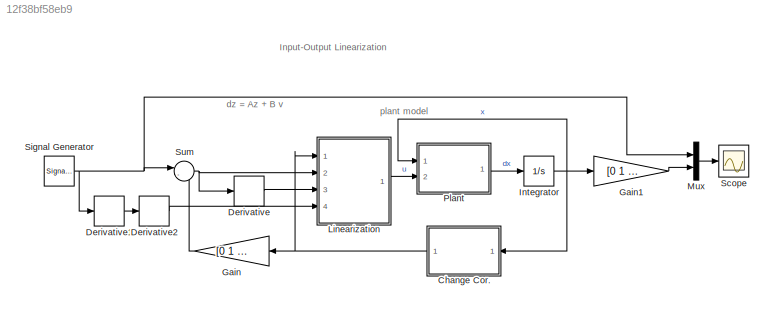
MODEL slx_12f38bf58eb9
KIND model
CONFIG AbsTol = auto
CONFIG EnableMultiTasking = on
CONFIG FixedStep = 0.001
CONFIG InitFcn = A = [0 1; 0 0] ;\nB = [0 1]' ;\nK = lqr(A , B , eye(2) , 1 , 0) ;
CONFIG MaxStep = 0.001
CONFIG MinStep = auto
CONFIG RelTol = 1e-3
CONFIG SampleTimeConstraint = Unconstrained
CONFIG Solver = FixedStepAuto
CONFIG SolverName = FixedStepAuto
CONFIG StartTime = 0.0
CONFIG StopTime = 100
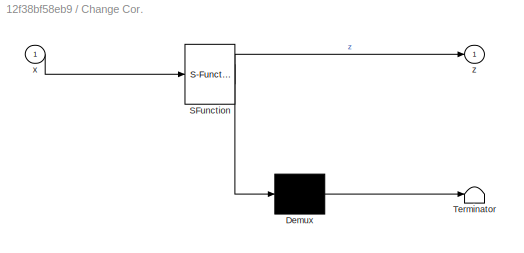
BLOCK [SubSystem] Change Cor.
  ErrorFcn = Stateflow.Translate.translate
  PermitHierarchicalResolution = ExplicitOnly
  Ports = [1, 1]
  RequestExecContextInheritance = off
  SFBlockType = MATLAB Function
  TreatAsAtomicUnit = on
BLOCK [Demux] Change Cor./ Demux 
  Outputs = 1
  Ports = [1, 1]
BLOCK [S-Function] Change Cor./ SFunction 
  EnableBusSupport = on
  FunctionName = sf_sfun
  PortCounts = [1 2]
  Ports = [1, 2]
  SFcnIsStateOwnerBlock = off
  SFunctionDeploymentMode = off
  Tag = Stateflow S-Function FL2 1
BLOCK [Terminator] Change Cor./ Terminator 
BLOCK [Inport] Change Cor./x
  IconDisplay = Port number
BLOCK [Outport] Change Cor./z
  IconDisplay = Port number
BLOCK [Derivative] Derivative
BLOCK [Derivative] Derivative1
BLOCK [Derivative] Derivative2
BLOCK [Gain] Gain
  Gain = [0  1  0]
  Multiplication = Matrix(K*u)
  OutDataTypeStr = Inherit: Inherit via internal rule
  ParamDataTypeStr = Inherit: Inherit via internal rule
  SaturateOnIntegerOverflow = off
BLOCK [Gain] Gain1
  Gain = [0  1  0]
  Multiplication = Matrix(K*u)
  OutDataTypeStr = Inherit: Inherit via internal rule
  ParamDataTypeStr = Inherit: Inherit via internal rule
  SaturateOnIntegerOverflow = off
BLOCK [Integrator] Integrator
  InitialCondition = randn(3,1)
  Ports = [1, 1]
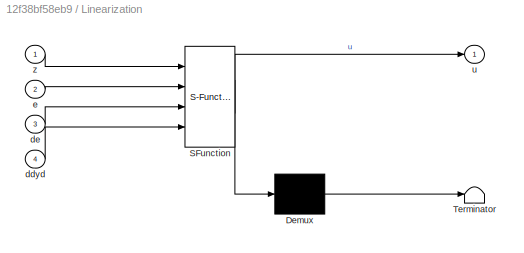
BLOCK [SubSystem] Linearization
  ErrorFcn = Stateflow.Translate.translate
  PermitHierarchicalResolution = ExplicitOnly
  Ports = [4, 1]
  RequestExecContextInheritance = off
  SFBlockType = MATLAB Function
  TreatAsAtomicUnit = on
BLOCK [Demux] Linearization/ Demux 
  Outputs = 1
  Ports = [1, 1]
BLOCK [S-Function] Linearization/ SFunction 
  EnableBusSupport = on
  FunctionName = sf_sfun
  PortCounts = [4 2]
  Ports = [4, 2]
  SFcnIsStateOwnerBlock = off
  SFunctionDeploymentMode = off
  Tag = Stateflow S-Function FL2 3
BLOCK [Terminator] Linearization/ Terminator 
BLOCK [Inport] Linearization/ddyd
  IconDisplay = Port number
  Port = 4
BLOCK [Inport] Linearization/de
  IconDisplay = Port number
  Port = 3
BLOCK [Inport] Linearization/e
  IconDisplay = Port number
  Port = 2
BLOCK [Outport] Linearization/u
  IconDisplay = Port number
BLOCK [Inport] Linearization/z
  IconDisplay = Port number
BLOCK [Mux] Mux
  DisplayOption = bar
  Inputs = 2
  Ports = [2, 1]
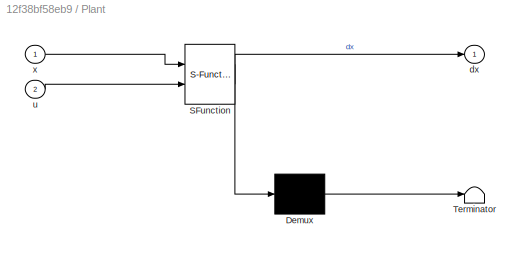
BLOCK [SubSystem] Plant
  ErrorFcn = Stateflow.Translate.translate
  PermitHierarchicalResolution = ExplicitOnly
  Ports = [2, 1]
  RequestExecContextInheritance = off
  SFBlockType = MATLAB Function
  TreatAsAtomicUnit = on
BLOCK [Demux] Plant/ Demux 
  Outputs = 1
  Ports = [1, 1]
BLOCK [S-Function] Plant/ SFunction 
  EnableBusSupport = on
  FunctionName = sf_sfun
  PortCounts = [2 2]
  Ports = [2, 2]
  SFcnIsStateOwnerBlock = off
  SFunctionDeploymentMode = off
  Tag = Stateflow S-Function FL2 2
BLOCK [Terminator] Plant/ Terminator 
BLOCK [Outport] Plant/dx
  IconDisplay = Port number
BLOCK [Inport] Plant/u
  IconDisplay = Port number
  Port = 2
BLOCK [Inport] Plant/x
  IconDisplay = Port number
BLOCK [Scope] Scope
  Floating = off
  NumInputPorts = 1
  Ports = [1]
  ScopeSpecificationString = Simulink.scopes.TimeScopeBlockCfg('CurrentConfiguration', extmgr.ConfigurationSet(extmgr.Configuration('Core','General UI',true),extmgr.Configuration('Core','Source UI',true),extmgr.Configuration('Sources','WiredSimulink',true),extmgr.Configuration('Visuals','Time Domain',true,'SerializedDisplays',{struct('MinYLimReal','-1.52104','MaxYLimReal','1.28012','YLabelReal','','MinYLimMag','0.00000','MaxY...<+1390ch>
BLOCK [SignalGenerator] Signal Generator
  Amplitude = 0.05
  Frequency = 0.1
  Ports = [0, 1]
BLOCK [Sum] Sum
  IconShape = round
  InputSameDT = off
  Inputs = |-+
  OutDataTypeStr = Inherit: Inherit via internal rule
  Ports = [2, 1]
  SaturateOnIntegerOverflow = off
ANNOTATION (root): plant model
ANNOTATION (root): Input-Output Linearization
ANNOTATION (root): dz = Az + B v
NET Change Cor.:1 -> Gain:1, Linearization:1
LINE Derivative1:1 -> Derivative2:1
LINE Derivative2:1 -> Linearization:4
LINE Derivative:1 -> Linearization:3
LINE Gain1:1 -> Mux:2
LINE Gain:1 -> Sum:2
NET Integrator:1 -> Change Cor.:1, Gain1:1, Plant:1
LINE Linearization:1 -> Plant:2
LINE Mux:1 -> Scope:1
LINE Plant:1 -> Integrator:1
NET Signal Generator:1 -> Derivative1:1, Mux:1, Sum:1
NET Sum:1 -> Derivative:1, Linearization:2
note: NET lines group one-source signal fan-out (src -> all destinations, sorted); 1:1 wires keep LINE
CHART Change Cor. states=1 transitions=1
  STATE_LABEL 'eML_blk_kernel()'
  STATE_LABEL 'SCRIPT:\nfunction z = fcn(x)\nz = zeros(3,1);\nz(1) = -x(1) + x(3) + atan(x(3)); \nz(2) = x(2);\nz(3) = x(3); '
CHART Plant states=1 transitions=1
  STATE_LABEL 'eML_blk_kernel()'
  STATE_LABEL 'SCRIPT:\nfunction dx = fcn(x, u)\ndx = zeros(3,1); \ndx(1) = -x(1) + (2 + x(3)^2)/(1 + x(3)^2) * u;\ndx(2) = x(3);\ndx(3) = x(1) * x(3) + u; '
CHART Linearization states=1 transitions=1
  STATE_LABEL 'eML_blk_kernel()'
  STATE_LABEL 'SCRIPT:\nfunction u = fcn(z, e, de, ddyd)\nk1 = 4;\nk2 = 4;\nv = ddyd - k1 * de - k2 * e;\nu = v - z(3) *(-z(1) + z(3) + atan(z(3)));'
